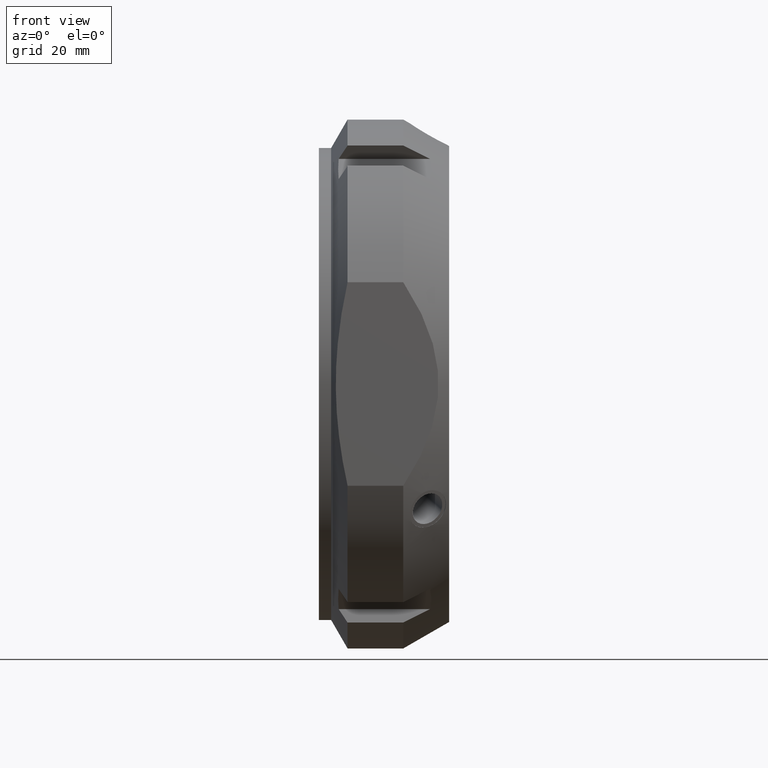
[diagram: clean part render]
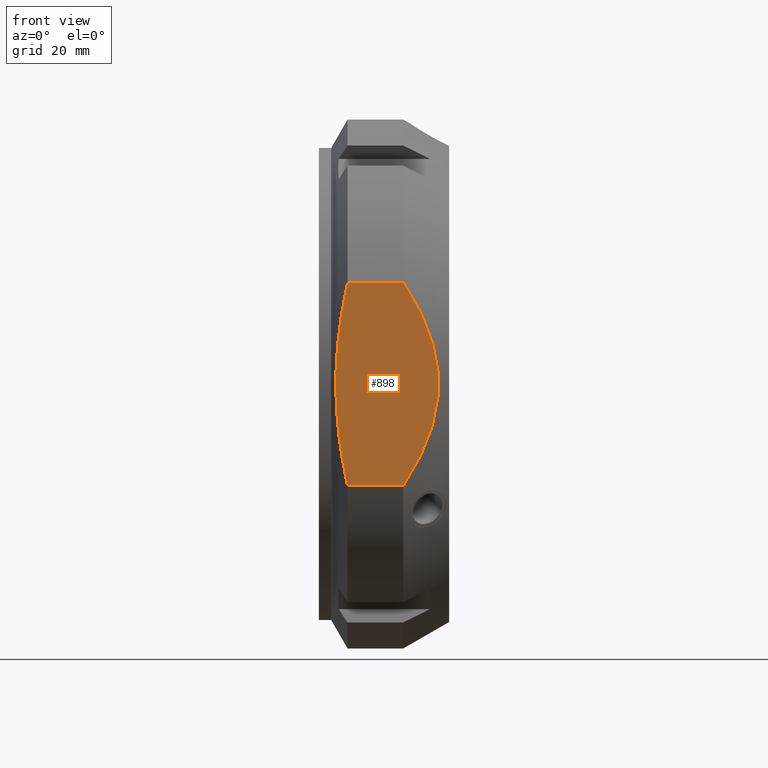
[diagram: same view with one face highlighted and labeled with its STEP entity id]
A machine part, front view. The second image highlights one B-rep face of the part: STEP entity #898.
In plain terms, the highlighted planar face has unit normal (0, 1, 0).
Its self-contained STEP definition (entity closure, byte-faithful):
#385=CARTESIAN_POINT('',(7.041451884327348,-60.000000000000028,-24.999999999999943));
#386=VERTEX_POINT('',#385);
#394=CARTESIAN_POINT('',(7.041451884327348,-60.000000000000043,24.99999999999989));
#395=VERTEX_POINT('',#394);
#396=CARTESIAN_POINT('',(7.041451884327348,-60.000000000000028,-24.999999999999929));
#397=CARTESIAN_POINT('',(1.490006988273313,-60.000000000000043,-2.220446E-014));
#398=CARTESIAN_POINT('',(7.041451884327348,-60.000000000000043,24.999999999999886));
#406=(BOUNDED_CURVE()B_SPLINE_CURVE(2,(#396,#397,#398),.UNSPECIFIED.,.F.,.U.)B_SPLINE_CURVE_WITH_KNOTS((3,3),(0.0,5.033222956847148),.UNSPECIFIED.)CURVE()GEOMETRIC_REPRESENTATION_ITEM()RATIONAL_B_SPLINE_CURVE((1.0,1.083333333333336,1.0))REPRESENTATION_ITEM(''));
#407=EDGE_CURVE('',#386,#395,#406,.T.);
#575=CARTESIAN_POINT('',(20.741669750802281,-60.000000000000028,-24.999999999999943));
#576=VERTEX_POINT('',#575);
#584=CARTESIAN_POINT('',(20.741669750802281,-60.000000000000028,-24.999999999999943));
#585=DIRECTION('',(-1.0,0.0,0.0));
#586=VECTOR('',#585,13.700217866474933);
#587=LINE('',#584,#586);
#588=EDGE_CURVE('',#576,#386,#587,.T.);
#826=CARTESIAN_POINT('',(20.741669750802281,-60.000000000000043,24.99999999999989));
#827=VERTEX_POINT('',#826);
#828=CARTESIAN_POINT('',(7.041451884327348,-60.000000000000043,24.99999999999989));
#829=DIRECTION('',(1.0,0.0,0.0));
#830=VECTOR('',#829,13.700217866474933);
#831=LINE('',#828,#830);
#832=EDGE_CURVE('',#395,#827,#831,.T.);
#875=CARTESIAN_POINT('',(0.0,-60.0,-100.00000000000001));
#876=DIRECTION('',(0.0,1.0,0.0));
#877=DIRECTION('',(0.0,0.0,1.0));
#878=AXIS2_PLACEMENT_3D('',#875,#876,#877);
#879=PLANE('',#878);
#880=ORIENTED_EDGE('',*,*,#407,.F.);
#881=ORIENTED_EDGE('',*,*,#588,.F.);
#882=CARTESIAN_POINT('',(20.741669750802281,-60.000000000000043,24.999999999999897));
#883=CARTESIAN_POINT('',(37.396004438964482,-60.000000000000028,-2.220446E-014));
#884=CARTESIAN_POINT('',(20.741669750802281,-60.000000000000028,-24.999999999999943));
#892=(BOUNDED_CURVE()B_SPLINE_CURVE(2,(#882,#883,#884),.UNSPECIFIED.,.F.,.U.)B_SPLINE_CURVE_WITH_KNOTS((3,3),(0.0,5.291502622129164),.UNSPECIFIED.)CURVE()GEOMETRIC_REPRESENTATION_ITEM()RATIONAL_B_SPLINE_CURVE((1.0,1.083333333333334,1.0))REPRESENTATION_ITEM(''));
#893=EDGE_CURVE('',#827,#576,#892,.T.);
#894=ORIENTED_EDGE('',*,*,#893,.F.);
#895=ORIENTED_EDGE('',*,*,#832,.F.);
#896=EDGE_LOOP('',(#880,#881,#894,#895));
#897=FACE_OUTER_BOUND('',#896,.T.);
#898=ADVANCED_FACE('',(#897),#879,.F.);